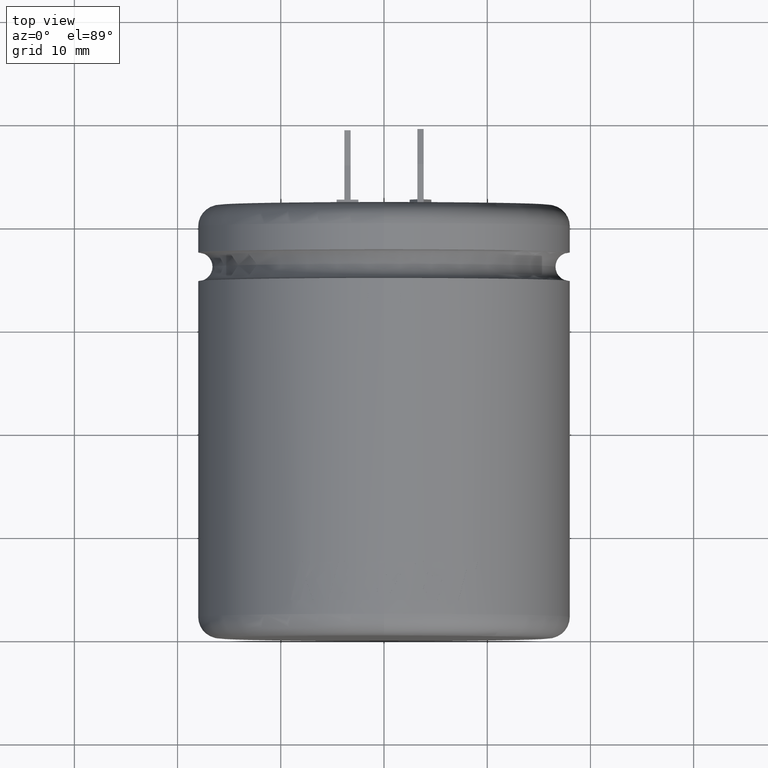
[diagram: clean part render]
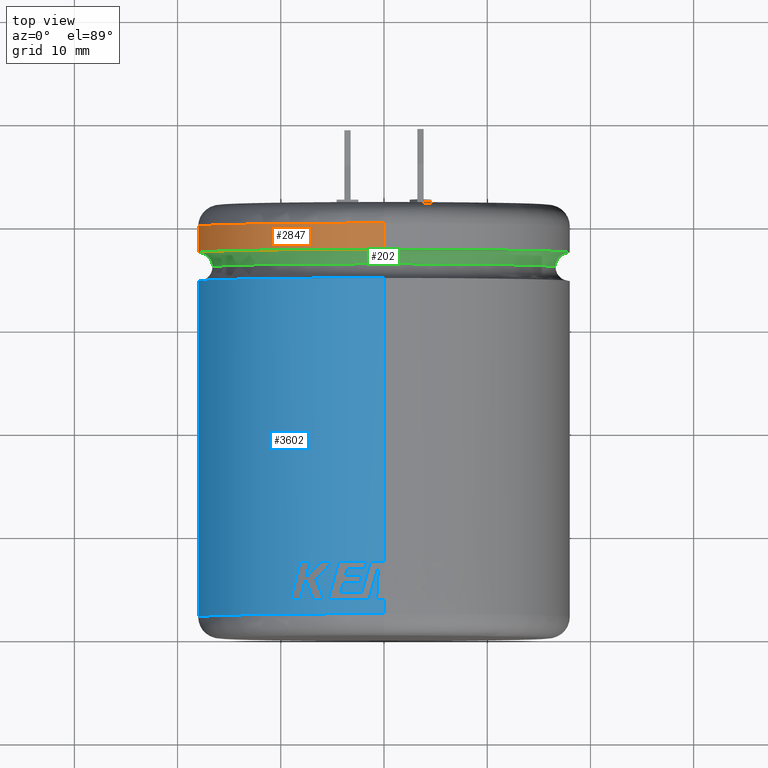
[diagram: same view with three faces highlighted in distinct colors, each labeled with its STEP entity id]
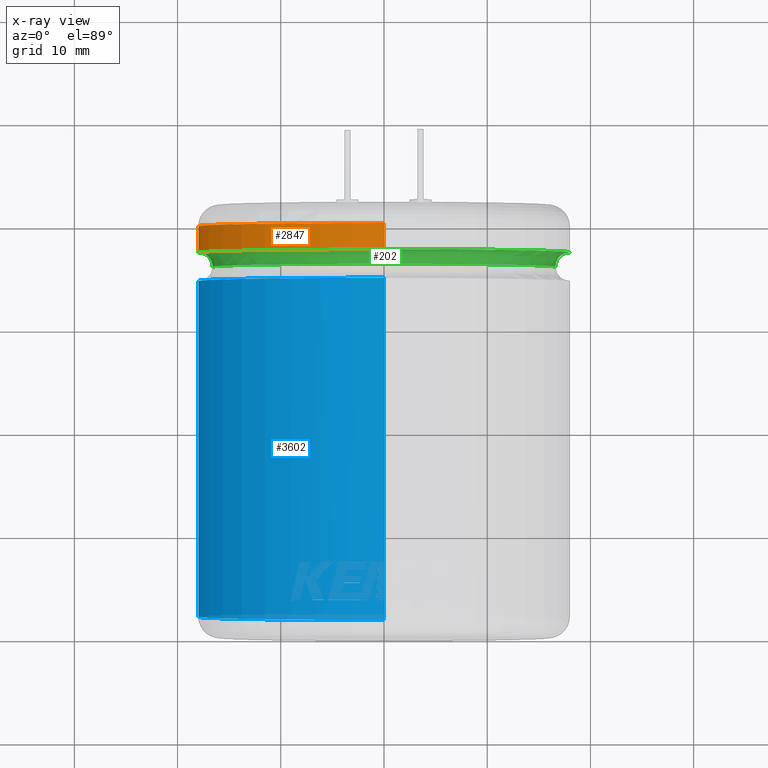
[diagram: x-ray of the same camera — body ghosted, the three highlighted faces saturated]
A machine part, top view with three faces highlighted in distinct colors.
The next image is the same camera in x-ray (body ghosted, the three faces saturated) — at least one of them is partly hidden behind the body in this view.
Their STEP definitions:

[orange] entity #2847 — the highlighted cylindrical surface (partial cylindrical patch) has radius 18 mm, axis along (-0, -1, -0).
#22 = DIRECTION ( 'NONE',  ( 0.0000000000000000000, 0.0000000000000000000, -1.000000000000000000 ) ) ;
#111 = EDGE_CURVE ( 'NONE', #4238, #4784, #1323, .T. ) ;
#139 = EDGE_CURVE ( 'NONE', #2804, #1575, #2580, .T. ) ;
#539 = DIRECTION ( 'NONE',  ( -1.000000000000000000, 0.0000000000000000000, 0.0000000000000000000 ) ) ;
#547 = CARTESIAN_POINT ( 'NONE',  ( 0.0000000000000000000, 42.00000000000000000, -18.00000000000000000 ) ) ;
#781 = AXIS2_PLACEMENT_3D ( 'NONE', #4140, #1912, #22 ) ;
#967 = DIRECTION ( 'NONE',  ( 8.590547633431504700E-018, 1.000000000000000000, -0.0000000000000000000 ) ) ;
#1039 = ORIENTED_EDGE ( 'NONE', *, *, #3397, .T. ) ;
#1174 = CARTESIAN_POINT ( 'NONE',  ( 0.0000000000000000000, 39.92640000000000100, -18.00000000000000000 ) ) ;
#1207 = AXIS2_PLACEMENT_3D ( 'NONE', #2761, #2782, #539 ) ;
#1223 = EDGE_CURVE ( 'NONE', #2804, #2062, #3415, .T. ) ;
#1255 = ORIENTED_EDGE ( 'NONE', *, *, #111, .T. ) ;
#1315 = VECTOR ( 'NONE', #3550, 1000.000000000000000 ) ;
#1323 = CIRCLE ( 'NONE', #4523, 18.00000000000000000 ) ;
#1505 = CYLINDRICAL_SURFACE ( 'NONE', #781, 18.00000000000000000 ) ;
#1575 = VERTEX_POINT ( 'NONE', #2513 ) ;
#1749 = DIRECTION ( 'NONE',  ( -1.000000000000000000, 0.0000000000000000000, 0.0000000000000000000 ) ) ;
#1781 = ORIENTED_EDGE ( 'NONE', *, *, #139, .F. ) ;
#1819 = CARTESIAN_POINT ( 'NONE',  ( 2.204364238465235000E-015, 39.92640000000000100, 18.00000000000000000 ) ) ;
#1912 = DIRECTION ( 'NONE',  ( -0.0000000000000000000, -1.000000000000000000, -0.0000000000000000000 ) ) ;
#2062 = VERTEX_POINT ( 'NONE', #1174 ) ;
#2359 = CIRCLE ( 'NONE', #1207, 18.00000000000000000 ) ;
#2388 = EDGE_LOOP ( 'NONE', ( #1781, #3292, #2556, #1255, #1039 ) ) ;
#2513 = CARTESIAN_POINT ( 'NONE',  ( 2.204364238465234600E-015, 37.38456000000000800, 18.00000000000000000 ) ) ;
#2556 = ORIENTED_EDGE ( 'NONE', *, *, #3040, .T. ) ;
#2580 = LINE ( 'NONE', #3606, #3446 ) ;
#2761 = CARTESIAN_POINT ( 'NONE',  ( 1.693203091659987300E-016, 37.38456000000000800, 0.0000000000000000000 ) ) ;
#2782 = DIRECTION ( 'NONE',  ( 8.590547633431504700E-018, 1.000000000000000000, -0.0000000000000000000 ) ) ;
#2804 = VERTEX_POINT ( 'NONE', #1819 ) ;
#2806 = DIRECTION ( 'NONE',  ( -0.0000000000000000000, -1.000000000000000000, -0.0000000000000000000 ) ) ;
#2847 = ADVANCED_FACE ( 'NONE', ( #3624 ), #1505, .T. ) ;
#3040 = EDGE_CURVE ( 'NONE', #2062, #4238, #3782, .T. ) ;
#3209 = CARTESIAN_POINT ( 'NONE',  ( 1.693203091659987300E-016, 37.38456000000000800, 0.0000000000000000000 ) ) ;
#3292 = ORIENTED_EDGE ( 'NONE', *, *, #1223, .T. ) ;
#3397 = EDGE_CURVE ( 'NONE', #4784, #1575, #2359, .T. ) ;
#3415 = CIRCLE ( 'NONE', #3868, 18.00000000000000000 ) ;
#3436 = CARTESIAN_POINT ( 'NONE',  ( -18.00000000000000000, 37.38456000000000800, 0.0000000000000000000 ) ) ;
#3446 = VECTOR ( 'NONE', #4745, 1000.000000000000000 ) ;
#3550 = DIRECTION ( 'NONE',  ( -0.0000000000000000000, -1.000000000000000000, -0.0000000000000000000 ) ) ;
#3606 = CARTESIAN_POINT ( 'NONE',  ( 2.204364238465235000E-015, 42.00000000000000000, 18.00000000000000000 ) ) ;
#3624 = FACE_OUTER_BOUND ( 'NONE', #2388, .T. ) ;
#3654 = DIRECTION ( 'NONE',  ( 0.0000000000000000000, 0.0000000000000000000, 1.000000000000000000 ) ) ;
#3782 = LINE ( 'NONE', #547, #1315 ) ;
#3868 = AXIS2_PLACEMENT_3D ( 'NONE', #4584, #2806, #3654 ) ;
#3991 = CARTESIAN_POINT ( 'NONE',  ( 0.0000000000000000000, 37.38456000000000800, -18.00000000000000000 ) ) ;
#4140 = CARTESIAN_POINT ( 'NONE',  ( 0.0000000000000000000, 42.00000000000000000, 0.0000000000000000000 ) ) ;
#4238 = VERTEX_POINT ( 'NONE', #3991 ) ;
#4523 = AXIS2_PLACEMENT_3D ( 'NONE', #3209, #967, #1749 ) ;
#4584 = CARTESIAN_POINT ( 'NONE',  ( 0.0000000000000000000, 39.92640000000000100, 0.0000000000000000000 ) ) ;
#4745 = DIRECTION ( 'NONE',  ( -0.0000000000000000000, -1.000000000000000000, -0.0000000000000000000 ) ) ;
#4784 = VERTEX_POINT ( 'NONE', #3436 ) ;

[blue] entity #3602 — the highlighted cylindrical surface (partial cylindrical patch) has radius 18 mm, axis along (-0, -1, -0).
#18 = CARTESIAN_POINT ( 'NONE',  ( 2.204364238465235000E-015, 42.00000000000000000, 18.00000000000000000 ) ) ;
#29 = DIRECTION ( 'NONE',  ( -0.0000000000000000000, -1.000000000000000000, -0.0000000000000000000 ) ) ;
#33 = DIRECTION ( 'NONE',  ( 0.0000000000000000000, 0.0000000000000000000, -1.000000000000000000 ) ) ;
#34 = CARTESIAN_POINT ( 'NONE',  ( -6.053087407364882800, 6.022685098070931000, 16.96159901777812700 ) ) ;
#48 = EDGE_CURVE ( 'NONE', #3876, #1132, #3141, .T. ) ;
#52 = CIRCLE ( 'NONE', #66, 17.99999999999999600 ) ;
#56 = B_SPLINE_CURVE_WITH_KNOTS ( 'NONE', 3,
 ( #4479, #2255, #392, #1941 ),
 .UNSPECIFIED., .F., .F.,
 ( 4, 4 ),
 ( 0.0000000000000000000, 1.000000000000000000 ),
 .UNSPECIFIED. ) ;
#66 = AXIS2_PLACEMENT_3D ( 'NONE', #2991, #4484, #2259 ) ;
#89 = EDGE_LOOP ( 'NONE', ( #2799, #2172, #1170, #3521, #3381, #1991, #2519, #1001, #3769, #888, #2994 ) ) ;
#145 = CARTESIAN_POINT ( 'NONE',  ( -3.547996104463902800, 6.448420704369920200, 17.64686158053915600 ) ) ;
#180 = CARTESIAN_POINT ( 'NONE',  ( -7.363530854154235300, 4.781541628773476700, 16.42716000188940800 ) ) ;
#190 = VERTEX_POINT ( 'NONE', #999 ) ;
#199 = CARTESIAN_POINT ( 'NONE',  ( -8.751614061561891600, 4.674870775951325700, 15.73329190126137100 ) ) ;
#203 = EDGE_CURVE ( 'NONE', #3368, #1132, #3611, .T. ) ;
#274 = CARTESIAN_POINT ( 'NONE',  ( 0.0000000000000000000, 3.433728050141714200, 0.0000000000000000000 ) ) ;
#275 = CARTESIAN_POINT ( 'NONE',  ( -5.805581988862653200, 3.433728050141721300, 17.03805205328923800 ) ) ;
#276 = VERTEX_POINT ( 'NONE', #1168 ) ;
#282 = DIRECTION ( 'NONE',  ( -0.0000000000000000000, -1.000000000000000000, -0.0000000000000000000 ) ) ;
#284 = B_SPLINE_CURVE_WITH_KNOTS ( 'NONE', 3,
 ( #3874, #2706, #1636, #2393 ),
 .UNSPECIFIED., .F., .F.,
 ( 4, 4 ),
 ( 0.0000000000000000000, 1.000000000000000000 ),
 .UNSPECIFIED. ) ;
#305 = EDGE_CURVE ( 'NONE', #2654, #1901, #3955, .T. ) ;
#309 = CARTESIAN_POINT ( 'NONE',  ( -7.160012152271282700, 7.157156118639027100, 16.51466699571406600 ) ) ;
#312 = CARTESIAN_POINT ( 'NONE',  ( -6.592235260511587000, 5.455448435884815900, 16.74940101227705500 ) ) ;
#326 = VERTEX_POINT ( 'NONE', #1599 ) ;
#372 = VERTEX_POINT ( 'NONE', #3120 ) ;
#376 = CARTESIAN_POINT ( 'NONE',  ( 2.204364238465235000E-015, 7.157156118639005800, 18.00000000000000000 ) ) ;
#380 = B_SPLINE_CURVE_WITH_KNOTS ( 'NONE', 3,
 ( #4315, #180, #396, #701 ),
 .UNSPECIFIED., .F., .F.,
 ( 4, 4 ),
 ( 0.0000000000000000000, 1.000000000000000000 ),
 .UNSPECIFIED. ) ;
#386 = VERTEX_POINT ( 'NONE', #4186 ) ;
#392 = CARTESIAN_POINT ( 'NONE',  ( -0.6565090902103309900, 4.538684763409447600, 17.98813030534065400 ) ) ;
#396 = CARTESIAN_POINT ( 'NONE',  ( -7.115803990627778600, 4.107634857253045400, 16.53597611073269700 ) ) ;
#402 = AXIS2_PLACEMENT_3D ( 'NONE', #274, #4373, #2457 ) ;
#427 = VERTEX_POINT ( 'NONE', #4253 ) ;
#432 = AXIS2_PLACEMENT_3D ( 'NONE', #2958, #1447, #2976 ) ;
#437 = VERTEX_POINT ( 'NONE', #2350 ) ;
#492 = DIRECTION ( 'NONE',  ( -0.2187330829183135300, 3.854941057726238600E-016, 0.9757847295572165100 ) ) ;
#504 = AXIS2_PLACEMENT_3D ( 'NONE', #4535, #823, #764 ) ;
#510 = DIRECTION ( 'NONE',  ( -0.0000000000000000000, -1.000000000000000000, -0.0000000000000000000 ) ) ;
#515 = ORIENTED_EDGE ( 'NONE', *, *, #610, .F. ) ;
#527 = CIRCLE ( 'NONE', #2802, 18.00000000000000000 ) ;
#538 = ORIENTED_EDGE ( 'NONE', *, *, #1659, .F. ) ;
#551 = B_SPLINE_CURVE_WITH_KNOTS ( 'NONE', 3,
 ( #2115, #3595, #2081, #3644 ),
 .UNSPECIFIED., .F., .F.,
 ( 4, 4 ),
 ( 0.0000000000000000000, 1.000000000000000000 ),
 .UNSPECIFIED. ) ;
#571 = EDGE_CURVE ( 'NONE', #3368, #4525, #700, .T. ) ;
#596 = DIRECTION ( 'NONE',  ( -0.2330031065407187900, 3.854941057726238100E-016, 0.9724759906251540000 ) ) ;
#609 = DIRECTION ( 'NONE',  ( -0.2433322734119316700, 3.854941057726238600E-016, 0.9699429904464389500 ) ) ;
#610 = EDGE_CURVE ( 'NONE', #3740, #427, #3302, .T. ) ;
#660 = AXIS2_PLACEMENT_3D ( 'NONE', #758, #792, #33 ) ;
#699 = VERTEX_POINT ( 'NONE', #4165 ) ;
#700 = B_SPLINE_CURVE_WITH_KNOTS ( 'NONE', 3,
 ( #3942, #915, #2801, #4681 ),
 .UNSPECIFIED., .F., .F.,
 ( 4, 4 ),
 ( 0.0000000000000000000, 1.000000000000000000 ),
 .UNSPECIFIED. ) ;
#701 = CARTESIAN_POINT ( 'NONE',  ( -6.865750854611251300, 3.433728050141735100, 16.63915458196133200 ) ) ;
#719 = LINE ( 'NONE', #18, #2876 ) ;
#735 = CARTESIAN_POINT ( 'NONE',  ( 2.204364238465235400E-015, 2.073600000000001700, -18.00000000000000400 ) ) ;
#756 = ORIENTED_EDGE ( 'NONE', *, *, #2827, .T. ) ;
#758 = CARTESIAN_POINT ( 'NONE',  ( 0.0000000000000000000, 42.00000000000000000, 0.0000000000000000000 ) ) ;
#764 = DIRECTION ( 'NONE',  ( -0.1971108946924390300, 3.854941057726238100E-016, 0.9803811989188420100 ) ) ;
#768 = CIRCLE ( 'NONE', #4550, 18.00000000000000000 ) ;
#788 = ORIENTED_EDGE ( 'NONE', *, *, #3883, .F. ) ;
#792 = DIRECTION ( 'NONE',  ( -0.0000000000000000000, -1.000000000000000000, -0.0000000000000000000 ) ) ;
#799 = EDGE_CURVE ( 'NONE', #427, #2317, #4396, .T. ) ;
#817 = ORIENTED_EDGE ( 'NONE', *, *, #2362, .F. ) ;
#820 = EDGE_LOOP ( 'NONE', ( #3264, #1236, #515, #2422, #1586, #538, #756, #3588, #4289, #3486, #1665, #3098, #2352, #2868, #4282, #3986, #817, #1313, #3712, #4742, #1358, #788, #1141 ) ) ;
#823 = DIRECTION ( 'NONE',  ( -0.0000000000000000000, -1.000000000000000000, -0.0000000000000000000 ) ) ;
#849 = DIRECTION ( 'NONE',  ( -0.0000000000000000000, -1.000000000000000000, -0.0000000000000000000 ) ) ;
#873 = EDGE_CURVE ( 'NONE', #3715, #372, #284, .T. ) ;
#885 = CARTESIAN_POINT ( 'NONE',  ( -3.679634359117203200, 5.986716016364027800, 17.62001144545076800 ) ) ;
#888 = ORIENTED_EDGE ( 'NONE', *, *, #1986, .F. ) ;
#910 = CARTESIAN_POINT ( 'NONE',  ( -9.059823112062554500, 3.433728050141714200, 15.55376498402033500 ) ) ;
#912 = CARTESIAN_POINT ( 'NONE',  ( 0.0000000000000000000, 7.157156118639005800, 0.0000000000000000000 ) ) ;
#915 = CARTESIAN_POINT ( 'NONE',  ( -7.957466802278486500, 4.107634847077396700, 16.14670341537122100 ) ) ;
#916 = CYLINDRICAL_SURFACE ( 'NONE', #660, 18.00000000000000000 ) ;
#990 = CARTESIAN_POINT ( 'NONE',  ( 2.204364238465235000E-015, 42.00000000000000000, 18.00000000000000000 ) ) ;
#996 = CARTESIAN_POINT ( 'NONE',  ( 0.0000000000000000000, 3.433728050141714200, 0.0000000000000000000 ) ) ;
#999 = CARTESIAN_POINT ( 'NONE',  ( -4.194055917732934600, 4.142112498812855000, 17.50456783125277100 ) ) ;
#1001 = ORIENTED_EDGE ( 'NONE', *, *, #1450, .F. ) ;
#1003 = EDGE_CURVE ( 'NONE', #2317, #1063, #719, .T. ) ;
#1024 = CARTESIAN_POINT ( 'NONE',  ( -5.805581988862653200, 3.433728050141721300, 17.03805205328923800 ) ) ;
#1029 = CIRCLE ( 'NONE', #1747, 18.00000000000000000 ) ;
#1030 = DIRECTION ( 'NONE',  ( -0.3814306030339587000, 3.854941057726238100E-016, 0.9243974767756295600 ) ) ;
#1063 = VERTEX_POINT ( 'NONE', #376 ) ;
#1065 = EDGE_CURVE ( 'NONE', #276, #699, #1963, .T. ) ;
#1071 = CARTESIAN_POINT ( 'NONE',  ( -2.163656463653873500, 4.142112498812841700, 17.86948770131054000 ) ) ;
#1077 = CARTESIAN_POINT ( 'NONE',  ( -7.299208097424586800, 6.627884890413956700, 16.45431793393139900 ) ) ;
#1122 = CARTESIAN_POINT ( 'NONE',  ( -2.142243894490854800, 3.433728050141721300, 17.87206734254648700 ) ) ;
#1130 = CARTESIAN_POINT ( 'NONE',  ( -0.5327008188985686800, 6.748598189941216900, 17.99211576879008200 ) ) ;
#1132 = VERTEX_POINT ( 'NONE', #910 ) ;
#1141 = ORIENTED_EDGE ( 'NONE', *, *, #2073, .F. ) ;
#1147 = B_SPLINE_CURVE_WITH_KNOTS ( 'NONE', 3,
 ( #1024, #4757, #4492, #2268 ),
 .UNSPECIFIED., .F., .F.,
 ( 4, 4 ),
 ( 0.0000000000000000000, 1.000000000000000000 ),
 .UNSPECIFIED. ) ;
#1162 = CARTESIAN_POINT ( 'NONE',  ( -4.946593443954788500, 7.157156118639027100, 17.30697007856151300 ) ) ;
#1168 = CARTESIAN_POINT ( 'NONE',  ( -2.364520464394884500, 5.067529549057176100, 17.84401980982586300 ) ) ;
#1170 = ORIENTED_EDGE ( 'NONE', *, *, #203, .T. ) ;
#1176 = CARTESIAN_POINT ( 'NONE',  ( -0.7183957370472805500, 3.433728050141721300, 17.98565838564138300 ) ) ;
#1227 = CARTESIAN_POINT ( 'NONE',  ( -1.871561596578898800, 6.448420704369933500, 17.90243718576359200 ) ) ;
#1236 = ORIENTED_EDGE ( 'NONE', *, *, #799, .F. ) ;
#1266 = CARTESIAN_POINT ( 'NONE',  ( -2.163656463653873500, 4.142112498812841700, 17.86948770131054000 ) ) ;
#1313 = ORIENTED_EDGE ( 'NONE', *, *, #1065, .F. ) ;
#1333 = VERTEX_POINT ( 'NONE', #1538 ) ;
#1336 = DIRECTION ( 'NONE',  ( -0.0000000000000000000, -1.000000000000000000, -0.0000000000000000000 ) ) ;
#1340 = AXIS2_PLACEMENT_3D ( 'NONE', #4356, #4695, #609 ) ;
#1354 = B_SPLINE_CURVE_WITH_KNOTS ( 'NONE', 3,
 ( #312, #34, #1512, #1162 ),
 .UNSPECIFIED., .F., .F.,
 ( 4, 4 ),
 ( 0.0000000000000000000, 1.000000000000000000 ),
 .UNSPECIFIED. ) ;
#1358 = ORIENTED_EDGE ( 'NONE', *, *, #4228, .F. ) ;
#1370 = VERTEX_POINT ( 'NONE', #1122 ) ;
#1373 = CARTESIAN_POINT ( 'NONE',  ( -6.865750854611251300, 3.433728050141735100, 16.63915458196133200 ) ) ;
#1388 = EDGE_CURVE ( 'NONE', #276, #2635, #2528, .T. ) ;
#1391 = CARTESIAN_POINT ( 'NONE',  ( -1.301129270185848300, 7.157156118639027100, 17.95291237159769400 ) ) ;
#1414 = EDGE_CURVE ( 'NONE', #1370, #3463, #3522, .T. ) ;
#1447 = DIRECTION ( 'NONE',  ( -0.0000000000000000000, -1.000000000000000000, -0.0000000000000000000 ) ) ;
#1450 = EDGE_CURVE ( 'NONE', #4388, #437, #768, .T. ) ;
#1453 = CARTESIAN_POINT ( 'NONE',  ( -8.119736658171515100, 7.157156118639012900, 16.06455342055750200 ) ) ;
#1470 = CARTESIAN_POINT ( 'NONE',  ( -1.589252230595373300, 6.152141566039146500, 17.93203078929829500 ) ) ;
#1474 = EDGE_CURVE ( 'NONE', #3410, #3463, #2466, .T. ) ;
#1482 = EDGE_CURVE ( 'NONE', #2453, #1370, #4619, .T. ) ;
#1510 = CARTESIAN_POINT ( 'NONE',  ( -3.937195492529642800, 5.067529549057161900, 17.56412513202989300 ) ) ;
#1512 = CARTESIAN_POINT ( 'NONE',  ( -5.503688933846706100, 6.589919456452912900, 17.14774377346899200 ) ) ;
#1523 = AXIS2_PLACEMENT_3D ( 'NONE', #3823, #1981, #2704 ) ;
#1538 = CARTESIAN_POINT ( 'NONE',  ( -1.301129270185848300, 7.157156118639027100, 17.95291237159769400 ) ) ;
#1544 = EDGE_CURVE ( 'NONE', #3220, #3663, #527, .T. ) ;
#1559 = VERTEX_POINT ( 'NONE', #1373 ) ;
#1586 = ORIENTED_EDGE ( 'NONE', *, *, #1544, .T. ) ;
#1599 = CARTESIAN_POINT ( 'NONE',  ( -6.592235260511587000, 5.455448435884815900, 16.74940101227705500 ) ) ;
#1618 = CARTESIAN_POINT ( 'NONE',  ( -2.169478348957994700, 5.755863672348017900, 17.86878181895459500 ) ) ;
#1621 = DIRECTION ( 'NONE',  ( -1.000000000000000000, 0.0000000000000000000, 0.0000000000000000000 ) ) ;
#1636 = CARTESIAN_POINT ( 'NONE',  ( -1.738052784594922700, 6.920910980540869100, 17.91601726774530000 ) ) ;
#1659 = EDGE_CURVE ( 'NONE', #3280, #3663, #1995, .T. ) ;
#1665 = ORIENTED_EDGE ( 'NONE', *, *, #1414, .T. ) ;
#1672 = CARTESIAN_POINT ( 'NONE',  ( 0.0000000000000000000, 3.433728050141714200, 0.0000000000000000000 ) ) ;
#1680 = CARTESIAN_POINT ( 'NONE',  ( -8.438067349264885700, 5.916013392829438700, 15.90365499317985100 ) ) ;
#1747 = AXIS2_PLACEMENT_3D ( 'NONE', #996, #282, #1030 ) ;
#1788 = CARTESIAN_POINT ( 'NONE',  ( -7.608679787506400100, 5.455448435884795400, 16.31281679818637200 ) ) ;
#1806 = AXIS2_PLACEMENT_3D ( 'NONE', #1672, #3922, #3130 ) ;
#1813 = CARTESIAN_POINT ( 'NONE',  ( -1.166705258218143600, 4.538684783613486000, 17.96495076955003600 ) ) ;
#1856 = CARTESIAN_POINT ( 'NONE',  ( -1.482892159573039100, 3.433728050141735100, 17.93881352941371800 ) ) ;
#1901 = VERTEX_POINT ( 'NONE', #3166 ) ;
#1905 = CIRCLE ( 'NONE', #504, 18.00000000000000000 ) ;
#1941 = CARTESIAN_POINT ( 'NONE',  ( -0.7183957370472805500, 3.433728050141721300, 17.98565838564138300 ) ) ;
#1952 = VERTEX_POINT ( 'NONE', #275 ) ;
#1953 = CARTESIAN_POINT ( 'NONE',  ( -2.364520464394884500, 5.067529549057176100, 17.84401980982586300 ) ) ;
#1963 = B_SPLINE_CURVE_WITH_KNOTS ( 'NONE', 3,
 ( #1953, #3489, #3541, #1618 ),
 .UNSPECIFIED., .F., .F.,
 ( 4, 4 ),
 ( 0.0000000000000000000, 1.000000000000000000 ),
 .UNSPECIFIED. ) ;
#1981 = DIRECTION ( 'NONE',  ( -0.0000000000000000000, -1.000000000000000000, -0.0000000000000000000 ) ) ;
#1986 = EDGE_CURVE ( 'NONE', #1952, #326, #1147, .T. ) ;
#1990 = CARTESIAN_POINT ( 'NONE',  ( -3.745338183389229900, 5.755863672348031200, 17.60603424658848600 ) ) ;
#1991 = ORIENTED_EDGE ( 'NONE', *, *, #3775, .F. ) ;
#1995 = LINE ( 'NONE', #990, #4209 ) ;
#2037 = CARTESIAN_POINT ( 'NONE',  ( 0.0000000000000000000, 5.067529549057154800, 0.0000000000000000000 ) ) ;
#2069 = CARTESIAN_POINT ( 'NONE',  ( -4.726396946638211600, 5.916013392550099500, 17.37206748426703100 ) ) ;
#2073 = EDGE_CURVE ( 'NONE', #1063, #1333, #2925, .T. ) ;
#2081 = CARTESIAN_POINT ( 'NONE',  ( -7.096777331776747700, 6.098614144212112900, 16.55034687751276600 ) ) ;
#2092 = AXIS2_PLACEMENT_3D ( 'NONE', #2877, #4692, #2451 ) ;
#2103 = CARTESIAN_POINT ( 'NONE',  ( 1.455320519033109100E-016, 34.61544000000000700, 0.0000000000000000000 ) ) ;
#2112 = VERTEX_POINT ( 'NONE', #3563 ) ;
#2115 = CARTESIAN_POINT ( 'NONE',  ( -6.112394054107641100, 7.157156118639012900, 16.93040575199866600 ) ) ;
#2167 = VERTEX_POINT ( 'NONE', #1266 ) ;
#2168 = DIRECTION ( 'NONE',  ( -1.000000000000000000, 0.0000000000000000000, 0.0000000000000000000 ) ) ;
#2172 = ORIENTED_EDGE ( 'NONE', *, *, #571, .F. ) ;
#2212 = DIRECTION ( 'NONE',  ( -0.0000000000000000000, -1.000000000000000000, -0.0000000000000000000 ) ) ;
#2255 = CARTESIAN_POINT ( 'NONE',  ( -0.5946096848715534100, 5.643641476673511000, 17.99028280461707000 ) ) ;
#2259 = DIRECTION ( 'NONE',  ( -0.03991087428040448300, 3.854941057726238600E-016, 0.9992032436467437300 ) ) ;
#2268 = CARTESIAN_POINT ( 'NONE',  ( -6.592235260511587000, 5.455448435884815900, 16.74940101227705500 ) ) ;
#2302 = CARTESIAN_POINT ( 'NONE',  ( -3.937195492529642800, 5.067529549057161900, 17.56412513202989300 ) ) ;
#2317 = VERTEX_POINT ( 'NONE', #2508 ) ;
#2350 = CARTESIAN_POINT ( 'NONE',  ( -6.112394054107641100, 7.157156118639012900, 16.93040575199866600 ) ) ;
#2352 = ORIENTED_EDGE ( 'NONE', *, *, #4417, .F. ) ;
#2362 = EDGE_CURVE ( 'NONE', #699, #2654, #3339, .T. ) ;
#2393 = CARTESIAN_POINT ( 'NONE',  ( -1.671244038210225400, 7.157156118639012900, 17.92224716280708900 ) ) ;
#2422 = ORIENTED_EDGE ( 'NONE', *, *, #4541, .T. ) ;
#2431 = CIRCLE ( 'NONE', #3963, 18.00000000000000000 ) ;
#2433 = CARTESIAN_POINT ( 'NONE',  ( -8.119736658171515100, 7.157156118639012900, 16.06455342055750200 ) ) ;
#2451 = DIRECTION ( 'NONE',  ( -0.2080743435216240700, 3.854941057726238100E-016, 0.9781130136993603200 ) ) ;
#2453 = VERTEX_POINT ( 'NONE', #1856 ) ;
#2457 = DIRECTION ( 'NONE',  ( -0.1190135496939363800, 3.854941057726238100E-016, 0.9928926301414714400 ) ) ;
#2466 = B_SPLINE_CURVE_WITH_KNOTS ( 'NONE', 3,
 ( #3493, #2069, #2798, #2783 ),
 .UNSPECIFIED., .F., .F.,
 ( 4, 4 ),
 ( 0.0000000000000000000, 1.000000000000000000 ),
 .UNSPECIFIED. ) ;
#2477 = DIRECTION ( 'NONE',  ( 0.0000000000000000000, 0.0000000000000000000, 1.000000000000000000 ) ) ;
#2478 = AXIS2_PLACEMENT_3D ( 'NONE', #4722, #1336, #596 ) ;
#2494 = LINE ( 'NONE', #3369, #4347 ) ;
#2508 = CARTESIAN_POINT ( 'NONE',  ( 2.204364238465235000E-015, 34.61544000000000700, 18.00000000000000000 ) ) ;
#2519 = ORIENTED_EDGE ( 'NONE', *, *, #4379, .F. ) ;
#2528 = CIRCLE ( 'NONE', #2568, 17.99999999999999600 ) ;
#2568 = AXIS2_PLACEMENT_3D ( 'NONE', #2037, #510, #492 ) ;
#2570 = AXIS2_PLACEMENT_3D ( 'NONE', #3857, #4626, #1621 ) ;
#2631 = AXIS2_PLACEMENT_3D ( 'NONE', #2103, #3680, #2168 ) ;
#2632 = DIRECTION ( 'NONE',  ( -0.0000000000000000000, -1.000000000000000000, -0.0000000000000000000 ) ) ;
#2635 = VERTEX_POINT ( 'NONE', #2302 ) ;
#2654 = VERTEX_POINT ( 'NONE', #4736 ) ;
#2704 = DIRECTION ( 'NONE',  ( -0.07228495945476955100, 3.854941057726238100E-016, 0.9973840206443163000 ) ) ;
#2706 = CARTESIAN_POINT ( 'NONE',  ( -1.804826695829750700, 6.684665842468092500, 17.90941380442716400 ) ) ;
#2711 = CARTESIAN_POINT ( 'NONE',  ( -3.613852291950595300, 6.217568360353946700, 17.63362084106878700 ) ) ;
#2766 = EDGE_CURVE ( 'NONE', #1952, #1559, #1029, .T. ) ;
#2783 = CARTESIAN_POINT ( 'NONE',  ( -5.410857978378484900, 3.433728050141721300, 17.16748717599107000 ) ) ;
#2798 = CARTESIAN_POINT ( 'NONE',  ( -5.070225548938021000, 4.674870776230662300, 17.27484789102396000 ) ) ;
#2799 = ORIENTED_EDGE ( 'NONE', *, *, #4672, .F. ) ;
#2801 = CARTESIAN_POINT ( 'NONE',  ( -7.783730467151874800, 4.781541638949131600, 16.23116906165592300 ) ) ;
#2802 = AXIS2_PLACEMENT_3D ( 'NONE', #3183, #3938, #2477 ) ;
#2827 = EDGE_CURVE ( 'NONE', #3280, #3374, #52, .T. ) ;
#2868 = ORIENTED_EDGE ( 'NONE', *, *, #873, .F. ) ;
#2876 = VECTOR ( 'NONE', #2632, 1000.000000000000000 ) ;
#2877 = CARTESIAN_POINT ( 'NONE',  ( 0.0000000000000000000, 5.755863672348010800, 0.0000000000000000000 ) ) ;
#2925 = CIRCLE ( 'NONE', #1523, 18.00000000000000000 ) ;
#2933 = CARTESIAN_POINT ( 'NONE',  ( -7.575266643059368500, 5.569342435477950400, 16.32835984679881800 ) ) ;
#2958 = CARTESIAN_POINT ( 'NONE',  ( 0.0000000000000000000, 3.433728050141714200, 0.0000000000000000000 ) ) ;
#2976 = DIRECTION ( 'NONE',  ( -0.5033235062256975500, 3.854941057726238600E-016, 0.8640980546677965400 ) ) ;
#2991 = CARTESIAN_POINT ( 'NONE',  ( 0.0000000000000000000, 3.433728050141714200, 0.0000000000000000000 ) ) ;
#2994 = ORIENTED_EDGE ( 'NONE', *, *, #2766, .T. ) ;
#3014 = CARTESIAN_POINT ( 'NONE',  ( -4.022959509627131800, 4.759057198942972600, 17.54490016642533600 ) ) ;
#3082 = VERTEX_POINT ( 'NONE', #4678 ) ;
#3084 = CARTESIAN_POINT ( 'NONE',  ( 2.204364238465235000E-015, 3.433728050141714200, 18.00000000000000000 ) ) ;
#3098 = ORIENTED_EDGE ( 'NONE', *, *, #1474, .F. ) ;
#3120 = CARTESIAN_POINT ( 'NONE',  ( -1.671244038210225400, 7.157156118639012900, 17.92224716280708900 ) ) ;
#3130 = DIRECTION ( 'NONE',  ( -0.3006032210210269300, 3.854941057726238100E-016, 0.9537492875550595000 ) ) ;
#3141 = B_SPLINE_CURVE_WITH_KNOTS ( 'NONE', 3,
 ( #2433, #1680, #199, #3173 ),
 .UNSPECIFIED., .F., .F.,
 ( 4, 4 ),
 ( 0.0000000000000000000, 1.000000000000000000 ),
 .UNSPECIFIED. ) ;
#3160 = EDGE_CURVE ( 'NONE', #2453, #2112, #3562, .T. ) ;
#3165 = DIRECTION ( 'NONE',  ( -0.0000000000000000000, -1.000000000000000000, -0.0000000000000000000 ) ) ;
#3166 = CARTESIAN_POINT ( 'NONE',  ( -3.547996104463902800, 6.448420704369920200, 17.64686158053915600 ) ) ;
#3173 = CARTESIAN_POINT ( 'NONE',  ( -9.059823112062554500, 3.433728050141714200, 15.55376498402033500 ) ) ;
#3183 = CARTESIAN_POINT ( 'NONE',  ( 0.0000000000000000000, 2.073600000000001700, 0.0000000000000000000 ) ) ;
#3196 = EDGE_CURVE ( 'NONE', #326, #4388, #1354, .T. ) ;
#3220 = VERTEX_POINT ( 'NONE', #735 ) ;
#3264 = ORIENTED_EDGE ( 'NONE', *, *, #1003, .F. ) ;
#3280 = VERTEX_POINT ( 'NONE', #3084 ) ;
#3297 = EDGE_CURVE ( 'NONE', #2112, #3374, #56, .T. ) ;
#3302 = CIRCLE ( 'NONE', #2631, 18.00000000000000000 ) ;
#3339 = CIRCLE ( 'NONE', #2092, 18.00000000000000000 ) ;
#3341 = EDGE_CURVE ( 'NONE', #386, #3876, #2431, .T. ) ;
#3353 = CARTESIAN_POINT ( 'NONE',  ( -4.194055917732934600, 4.142112498812855000, 17.50456783125277100 ) ) ;
#3368 = VERTEX_POINT ( 'NONE', #4561 ) ;
#3369 = CARTESIAN_POINT ( 'NONE',  ( 0.0000000000000000000, 42.00000000000000000, -18.00000000000000000 ) ) ;
#3374 = VERTEX_POINT ( 'NONE', #1176 ) ;
#3381 = ORIENTED_EDGE ( 'NONE', *, *, #3341, .F. ) ;
#3410 = VERTEX_POINT ( 'NONE', #3542 ) ;
#3418 = CARTESIAN_POINT ( 'NONE',  ( -4.108582713489697700, 4.450584848927058500, 17.52504702282835000 ) ) ;
#3432 = CARTESIAN_POINT ( 'NONE',  ( 0.0000000000000000000, 7.157156118639005800, 0.0000000000000000000 ) ) ;
#3462 = B_SPLINE_CURVE_WITH_KNOTS ( 'NONE', 3,
 ( #2933, #4427, #1077, #309 ),
 .UNSPECIFIED., .F., .F.,
 ( 4, 4 ),
 ( 0.0000000000000000000, 1.000000000000000000 ),
 .UNSPECIFIED. ) ;
#3463 = VERTEX_POINT ( 'NONE', #3502 ) ;
#3486 = ORIENTED_EDGE ( 'NONE', *, *, #1482, .T. ) ;
#3489 = CARTESIAN_POINT ( 'NONE',  ( -2.299552150307562200, 5.296974256828367100, 17.85262879534784400 ) ) ;
#3493 = CARTESIAN_POINT ( 'NONE',  ( -4.379980921414766500, 7.157156118639027100, 17.45897382803590100 ) ) ;
#3502 = CARTESIAN_POINT ( 'NONE',  ( -5.410857978378484900, 3.433728050141721300, 17.16748717599107000 ) ) ;
#3521 = ORIENTED_EDGE ( 'NONE', *, *, #48, .F. ) ;
#3522 = CIRCLE ( 'NONE', #1806, 18.00000000000000000 ) ;
#3541 = CARTESIAN_POINT ( 'NONE',  ( -2.234536819075385600, 5.526418964576844700, 17.86088296251513400 ) ) ;
#3542 = CARTESIAN_POINT ( 'NONE',  ( -4.379980921414766500, 7.157156118639027100, 17.45897382803590100 ) ) ;
#3562 = B_SPLINE_CURVE_WITH_KNOTS ( 'NONE', 3,
 ( #3683, #1813, #4497, #1130 ),
 .UNSPECIFIED., .F., .F.,
 ( 4, 4 ),
 ( 0.0000000000000000000, 1.000000000000000000 ),
 .UNSPECIFIED. ) ;
#3563 = CARTESIAN_POINT ( 'NONE',  ( -0.5327008188985686800, 6.748598189941216900, 17.99211576879008200 ) ) ;
#3574 = FACE_BOUND ( 'NONE', #89, .T. ) ;
#3588 = ORIENTED_EDGE ( 'NONE', *, *, #3297, .F. ) ;
#3595 = CARTESIAN_POINT ( 'NONE',  ( -6.608525831213056800, 6.627884409904869000, 16.75128701327174600 ) ) ;
#3602 = ADVANCED_FACE ( 'NONE', ( #3739, #3574 ), #916, .T. ) ;
#3611 = CIRCLE ( 'NONE', #432, 17.99999999999999600 ) ;
#3622 = EDGE_CURVE ( 'NONE', #190, #2635, #4471, .T. ) ;
#3644 = CARTESIAN_POINT ( 'NONE',  ( -7.575266643059368500, 5.569342435477950400, 16.32835984679881800 ) ) ;
#3663 = VERTEX_POINT ( 'NONE', #3728 ) ;
#3680 = DIRECTION ( 'NONE',  ( 8.590547633431504700E-018, 1.000000000000000000, -0.0000000000000000000 ) ) ;
#3683 = CARTESIAN_POINT ( 'NONE',  ( -1.482892159573039100, 3.433728050141735100, 17.93881352941371800 ) ) ;
#3712 = ORIENTED_EDGE ( 'NONE', *, *, #1388, .T. ) ;
#3715 = VERTEX_POINT ( 'NONE', #1227 ) ;
#3728 = CARTESIAN_POINT ( 'NONE',  ( 0.0000000000000000000, 2.073600000000001700, 18.00000000000000400 ) ) ;
#3739 = FACE_OUTER_BOUND ( 'NONE', #820, .T. ) ;
#3740 = VERTEX_POINT ( 'NONE', #3891 ) ;
#3769 = ORIENTED_EDGE ( 'NONE', *, *, #3196, .F. ) ;
#3775 = EDGE_CURVE ( 'NONE', #3082, #386, #3462, .T. ) ;
#3823 = CARTESIAN_POINT ( 'NONE',  ( 0.0000000000000000000, 7.157156118639005800, 0.0000000000000000000 ) ) ;
#3857 = CARTESIAN_POINT ( 'NONE',  ( 1.455320519033109100E-016, 34.61544000000000700, 0.0000000000000000000 ) ) ;
#3858 = DIRECTION ( 'NONE',  ( -0.3395774474504245100, 3.854941057726238100E-016, 0.9405780973332592600 ) ) ;
#3874 = CARTESIAN_POINT ( 'NONE',  ( -1.871561596578898800, 6.448420704369933500, 17.90243718576359200 ) ) ;
#3876 = VERTEX_POINT ( 'NONE', #1453 ) ;
#3883 = EDGE_CURVE ( 'NONE', #1333, #2167, #4410, .T. ) ;
#3891 = CARTESIAN_POINT ( 'NONE',  ( 0.0000000000000000000, 34.61544000000000700, -18.00000000000000000 ) ) ;
#3922 = DIRECTION ( 'NONE',  ( -0.0000000000000000000, -1.000000000000000000, -0.0000000000000000000 ) ) ;
#3938 = DIRECTION ( 'NONE',  ( 0.0000000000000000000, 1.000000000000000000, 0.0000000000000000000 ) ) ;
#3942 = CARTESIAN_POINT ( 'NONE',  ( -8.129798782473606900, 3.433728050141721300, 16.05946361982524500 ) ) ;
#3955 = B_SPLINE_CURVE_WITH_KNOTS ( 'NONE', 3,
 ( #1990, #885, #2711, #145 ),
 .UNSPECIFIED., .F., .F.,
 ( 4, 4 ),
 ( 0.0000000000000000000, 1.000000000000000000 ),
 .UNSPECIFIED. ) ;
#3963 = AXIS2_PLACEMENT_3D ( 'NONE', #3432, #849, #4213 ) ;
#3986 = ORIENTED_EDGE ( 'NONE', *, *, #305, .F. ) ;
#4085 = CARTESIAN_POINT ( 'NONE',  ( -1.876872370302620400, 5.147127051412731200, 17.90421182254021900 ) ) ;
#4165 = CARTESIAN_POINT ( 'NONE',  ( -2.169478348957994700, 5.755863672348017900, 17.86878181895459500 ) ) ;
#4186 = CARTESIAN_POINT ( 'NONE',  ( -7.160012152271282700, 7.157156118639027100, 16.51466699571406600 ) ) ;
#4209 = VECTOR ( 'NONE', #29, 1000.000000000000000 ) ;
#4213 = DIRECTION ( 'NONE',  ( -0.4510964810095285900, 3.854941057726238100E-016, 0.8924751900309723100 ) ) ;
#4228 = EDGE_CURVE ( 'NONE', #2167, #190, #4656, .T. ) ;
#4253 = CARTESIAN_POINT ( 'NONE',  ( -18.00000000000000000, 34.61544000000000700, 0.0000000000000000000 ) ) ;
#4282 = ORIENTED_EDGE ( 'NONE', *, *, #4774, .T. ) ;
#4289 = ORIENTED_EDGE ( 'NONE', *, *, #3160, .F. ) ;
#4304 = CARTESIAN_POINT ( 'NONE',  ( -4.946593443954788500, 7.157156118639027100, 17.30697007856151300 ) ) ;
#4315 = CARTESIAN_POINT ( 'NONE',  ( -7.608679787506400100, 5.455448435884795400, 16.31281679818637200 ) ) ;
#4347 = VECTOR ( 'NONE', #2212, 1000.000000000000000 ) ;
#4356 = CARTESIAN_POINT ( 'NONE',  ( 0.0000000000000000000, 7.157156118639005800, 0.0000000000000000000 ) ) ;
#4373 = DIRECTION ( 'NONE',  ( -0.0000000000000000000, -1.000000000000000000, -0.0000000000000000000 ) ) ;
#4379 = EDGE_CURVE ( 'NONE', #437, #3082, #551, .T. ) ;
#4388 = VERTEX_POINT ( 'NONE', #4304 ) ;
#4396 = CIRCLE ( 'NONE', #2570, 18.00000000000000000 ) ;
#4410 = B_SPLINE_CURVE_WITH_KNOTS ( 'NONE', 3,
 ( #1391, #1470, #4085, #1071 ),
 .UNSPECIFIED., .F., .F.,
 ( 4, 4 ),
 ( 0.0000000000000000000, 1.000000000000000000 ),
 .UNSPECIFIED. ) ;
#4417 = EDGE_CURVE ( 'NONE', #372, #3410, #4842, .T. ) ;
#4427 = CARTESIAN_POINT ( 'NONE',  ( -7.437641011112428500, 6.098613663703020800, 16.39220893321652300 ) ) ;
#4471 = B_SPLINE_CURVE_WITH_KNOTS ( 'NONE', 3,
 ( #3353, #3418, #3014, #1510 ),
 .UNSPECIFIED., .F., .F.,
 ( 4, 4 ),
 ( 0.0000000000000000000, 1.000000000000000000 ),
 .UNSPECIFIED. ) ;
#4479 = CARTESIAN_POINT ( 'NONE',  ( -0.5327008188985686800, 6.748598189941216900, 17.99211576879008200 ) ) ;
#4484 = DIRECTION ( 'NONE',  ( -0.0000000000000000000, -1.000000000000000000, -0.0000000000000000000 ) ) ;
#4492 = CARTESIAN_POINT ( 'NONE',  ( -6.332304621702345300, 4.781541626382653100, 16.85170460636914000 ) ) ;
#4497 = CARTESIAN_POINT ( 'NONE',  ( -0.8498272177222374600, 5.643641456469461000, 17.98272646213384400 ) ) ;
#4525 = VERTEX_POINT ( 'NONE', #1788 ) ;
#4535 = CARTESIAN_POINT ( 'NONE',  ( 0.0000000000000000000, 6.448420704369913100, 0.0000000000000000000 ) ) ;
#4541 = EDGE_CURVE ( 'NONE', #3740, #3220, #2494, .T. ) ;
#4550 = AXIS2_PLACEMENT_3D ( 'NONE', #912, #3165, #3858 ) ;
#4561 = CARTESIAN_POINT ( 'NONE',  ( -8.129798782473606900, 3.433728050141721300, 16.05946361982524500 ) ) ;
#4619 = CIRCLE ( 'NONE', #402, 18.00000000000000000 ) ;
#4626 = DIRECTION ( 'NONE',  ( 8.590547633431504700E-018, 1.000000000000000000, -0.0000000000000000000 ) ) ;
#4656 = CIRCLE ( 'NONE', #2478, 18.00000000000000000 ) ;
#4672 = EDGE_CURVE ( 'NONE', #4525, #1559, #380, .T. ) ;
#4678 = CARTESIAN_POINT ( 'NONE',  ( -7.575266643059368500, 5.569342435477950400, 16.32835984679881800 ) ) ;
#4681 = CARTESIAN_POINT ( 'NONE',  ( -7.608679787506400100, 5.455448435884795400, 16.31281679818637200 ) ) ;
#4692 = DIRECTION ( 'NONE',  ( -0.0000000000000000000, -1.000000000000000000, -0.0000000000000000000 ) ) ;
#4695 = DIRECTION ( 'NONE',  ( -0.0000000000000000000, -1.000000000000000000, -0.0000000000000000000 ) ) ;
#4722 = CARTESIAN_POINT ( 'NONE',  ( 0.0000000000000000000, 4.142112498812834600, 0.0000000000000000000 ) ) ;
#4736 = CARTESIAN_POINT ( 'NONE',  ( -3.745338183389229900, 5.755863672348031200, 17.60603424658848600 ) ) ;
#4742 = ORIENTED_EDGE ( 'NONE', *, *, #3622, .F. ) ;
#4757 = CARTESIAN_POINT ( 'NONE',  ( -6.069992146039639100, 4.107634859643895600, 16.94795637560390100 ) ) ;
#4774 = EDGE_CURVE ( 'NONE', #3715, #1901, #1905, .T. ) ;
#4842 = CIRCLE ( 'NONE', #1340, 17.99999999999999600 ) ;

[green] entity #202 — the highlighted toroidal blend (fillet) surface has major radius 18 mm and minor (blend) radius 1.3846 mm.
#175 = AXIS2_PLACEMENT_3D ( 'NONE', #951, #1100, #2923 ) ;
#184 = CIRCLE ( 'NONE', #1107, 1.384560000000000000 ) ;
#202 = ADVANCED_FACE ( 'NONE', ( #2998 ), #4712, .F. ) ;
#237 = CARTESIAN_POINT ( 'NONE',  ( 1.693203091659987300E-016, 37.38456000000000800, 0.0000000000000000000 ) ) ;
#345 = DIRECTION ( 'NONE',  ( 8.590547633431504700E-018, 1.000000000000000000, -0.0000000000000000000 ) ) ;
#369 = EDGE_CURVE ( 'NONE', #4784, #1246, #2555, .T. ) ;
#539 = DIRECTION ( 'NONE',  ( -1.000000000000000000, 0.0000000000000000000, 0.0000000000000000000 ) ) ;
#553 = EDGE_LOOP ( 'NONE', ( #2320, #1628, #2606, #1293, #2610 ) ) ;
#698 = EDGE_CURVE ( 'NONE', #1246, #4819, #2416, .T. ) ;
#807 = AXIS2_PLACEMENT_3D ( 'NONE', #237, #4772, #3217 ) ;
#838 = DIRECTION ( 'NONE',  ( -1.000000000000000000, 0.0000000000000000000, 0.0000000000000000000 ) ) ;
#951 = CARTESIAN_POINT ( 'NONE',  ( 0.0000000000000000000, 36.00000000000000700, 0.0000000000000000000 ) ) ;
#1100 = DIRECTION ( 'NONE',  ( 8.590547633431504700E-018, 1.000000000000000000, -0.0000000000000000000 ) ) ;
#1107 = AXIS2_PLACEMENT_3D ( 'NONE', #4664, #3972, #2425 ) ;
#1207 = AXIS2_PLACEMENT_3D ( 'NONE', #2761, #2782, #539 ) ;
#1246 = VERTEX_POINT ( 'NONE', #4715 ) ;
#1293 = ORIENTED_EDGE ( 'NONE', *, *, #1635, .F. ) ;
#1575 = VERTEX_POINT ( 'NONE', #2513 ) ;
#1628 = ORIENTED_EDGE ( 'NONE', *, *, #698, .T. ) ;
#1635 = EDGE_CURVE ( 'NONE', #1575, #4655, #3041, .T. ) ;
#1890 = EDGE_CURVE ( 'NONE', #4655, #4819, #184, .T. ) ;
#2320 = ORIENTED_EDGE ( 'NONE', *, *, #369, .T. ) ;
#2359 = CIRCLE ( 'NONE', #1207, 18.00000000000000000 ) ;
#2416 = CIRCLE ( 'NONE', #3414, 16.61544000000000000 ) ;
#2425 = DIRECTION ( 'NONE',  ( 1.000000000000000000, 0.0000000000000000000, 1.224646799147352700E-016 ) ) ;
#2513 = CARTESIAN_POINT ( 'NONE',  ( 2.204364238465234600E-015, 37.38456000000000800, 18.00000000000000000 ) ) ;
#2555 = CIRCLE ( 'NONE', #3989, 1.384560000000000000 ) ;
#2606 = ORIENTED_EDGE ( 'NONE', *, *, #1890, .F. ) ;
#2610 = ORIENTED_EDGE ( 'NONE', *, *, #3397, .F. ) ;
#2761 = CARTESIAN_POINT ( 'NONE',  ( 1.693203091659987300E-016, 37.38456000000000800, 0.0000000000000000000 ) ) ;
#2782 = DIRECTION ( 'NONE',  ( 8.590547633431504700E-018, 1.000000000000000000, -0.0000000000000000000 ) ) ;
#2923 = DIRECTION ( 'NONE',  ( -1.000000000000000000, 8.590547633431504700E-018, 0.0000000000000000000 ) ) ;
#2998 = FACE_OUTER_BOUND ( 'NONE', #553, .T. ) ;
#3041 = CIRCLE ( 'NONE', #807, 18.00000000000000000 ) ;
#3044 = CARTESIAN_POINT ( 'NONE',  ( -1.456610655702222600E-033, 36.00000000000000700, 0.0000000000000000000 ) ) ;
#3217 = DIRECTION ( 'NONE',  ( -1.000000000000000000, 0.0000000000000000000, 0.0000000000000000000 ) ) ;
#3397 = EDGE_CURVE ( 'NONE', #4784, #1575, #2359, .T. ) ;
#3414 = AXIS2_PLACEMENT_3D ( 'NONE', #3044, #345, #3708 ) ;
#3436 = CARTESIAN_POINT ( 'NONE',  ( -18.00000000000000000, 37.38456000000000800, 0.0000000000000000000 ) ) ;
#3703 = CARTESIAN_POINT ( 'NONE',  ( 18.00000000000000000, 37.38456000000000800, 2.204364238465235400E-015 ) ) ;
#3708 = DIRECTION ( 'NONE',  ( -1.000000000000000000, 0.0000000000000000000, 0.0000000000000000000 ) ) ;
#3832 = CARTESIAN_POINT ( 'NONE',  ( -18.00000000000000000, 36.00000000000000700, 0.0000000000000000000 ) ) ;
#3879 = DIRECTION ( 'NONE',  ( -0.0000000000000000000, 0.0000000000000000000, -1.000000000000000000 ) ) ;
#3972 = DIRECTION ( 'NONE',  ( -1.224646799147353200E-016, 1.052038666220476200E-033, 1.000000000000000000 ) ) ;
#3989 = AXIS2_PLACEMENT_3D ( 'NONE', #3832, #3879, #838 ) ;
#4500 = CARTESIAN_POINT ( 'NONE',  ( 16.61544000000000000, 36.00000000000000700, 2.034804541242489700E-015 ) ) ;
#4655 = VERTEX_POINT ( 'NONE', #3703 ) ;
#4664 = CARTESIAN_POINT ( 'NONE',  ( 18.00000000000000000, 36.00000000000000700, 2.204364238465235400E-015 ) ) ;
#4712 = TOROIDAL_SURFACE ( 'NONE', #175, 18.00000000000000000, 1.384560000000000000 ) ;
#4715 = CARTESIAN_POINT ( 'NONE',  ( -16.61544000000000000, 36.00000000000000700, 0.0000000000000000000 ) ) ;
#4772 = DIRECTION ( 'NONE',  ( 8.590547633431504700E-018, 1.000000000000000000, -0.0000000000000000000 ) ) ;
#4784 = VERTEX_POINT ( 'NONE', #3436 ) ;
#4819 = VERTEX_POINT ( 'NONE', #4500 ) ;